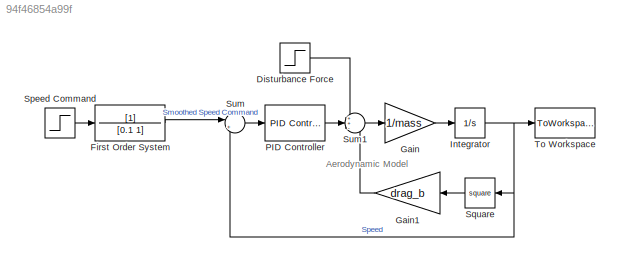
MODEL slx_94f46854a99f
KIND model
CONFIG AbsTol = auto
CONFIG EnableMultiTasking = off
CONFIG FixedStep = auto
CONFIG MaxStep = auto
CONFIG MinStep = auto
CONFIG RelTol = 1e-3
CONFIG SampleTimeConstraint = Unconstrained
CONFIG SolverName = VariableStepAuto
CONFIG StartTime = 0.0
CONFIG StopTime = 30
BLOCK [Step] Disturbance Force
  After = 5
  SampleTime = 0
  Time = 15
BLOCK [TransferFcn] First Order System
  Denominator = [0.1 1]
BLOCK [Gain] Gain
  Gain = 1/mass
BLOCK [Gain] Gain1
  Gain = drag_b
BLOCK [Integrator] Integrator
  InitialCondition = 10
  Ports = [1, 1]
BLOCK [Reference] PID Controller  REF=pid_lib/PID Controller
  Ports = [1, 1]
  SourceBlock = pid_lib/PID Controller
  SourceProductBaseCode = SL
  SourceType = PID 1dof
BLOCK [Step] Speed Command
  After = 15
  Before = 10
  SampleTime = 0
  Time = 0
BLOCK [Math] Square
  Operator = square
  Ports = [1, 1]
BLOCK [Sum] Sum
  Inputs = |+-
  Ports = [2, 1]
BLOCK [Sum] Sum1
  Inputs = ++-
  Ports = [3, 1]
BLOCK [ToWorkspace] To Workspace
  FixptAsFi = on
  MaxDataPoints = inf
  Ports = [1]
  SampleTime = -1
  SaveFormat = Timeseries
  VariableName = speed
ANNOTATION (root): Aerodynamic Model
LINE Disturbance Force:1 -> Sum1:1
LINE First Order System:1 -> Sum:1
LINE Gain1:1 -> Sum1:3
LINE Gain:1 -> Integrator:1
NET Integrator:1 -> Square:1, Sum:2, To Workspace:1
LINE PID Controller:1 -> Sum1:2
LINE Speed Command:1 -> First Order System:1
LINE Square:1 -> Gain1:1
LINE Sum1:1 -> Gain:1
LINE Sum:1 -> PID Controller:1
note: NET lines group one-source signal fan-out (src -> all destinations, sorted); 1:1 wires keep LINE
